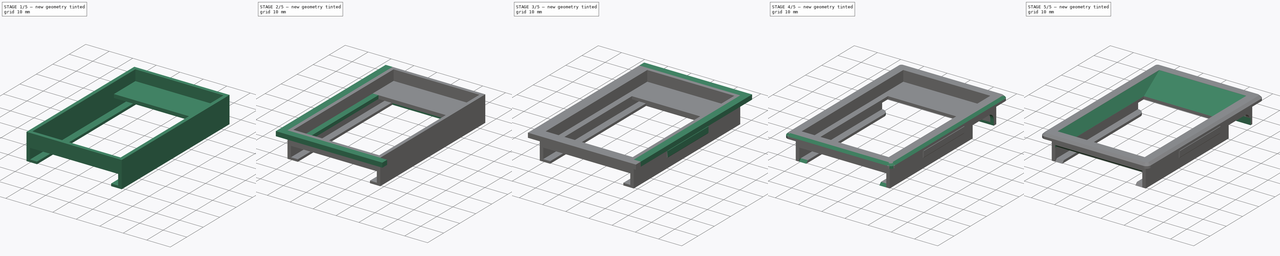
[diagram: build sequence overview — one tinted view per stage of 5, left to right]
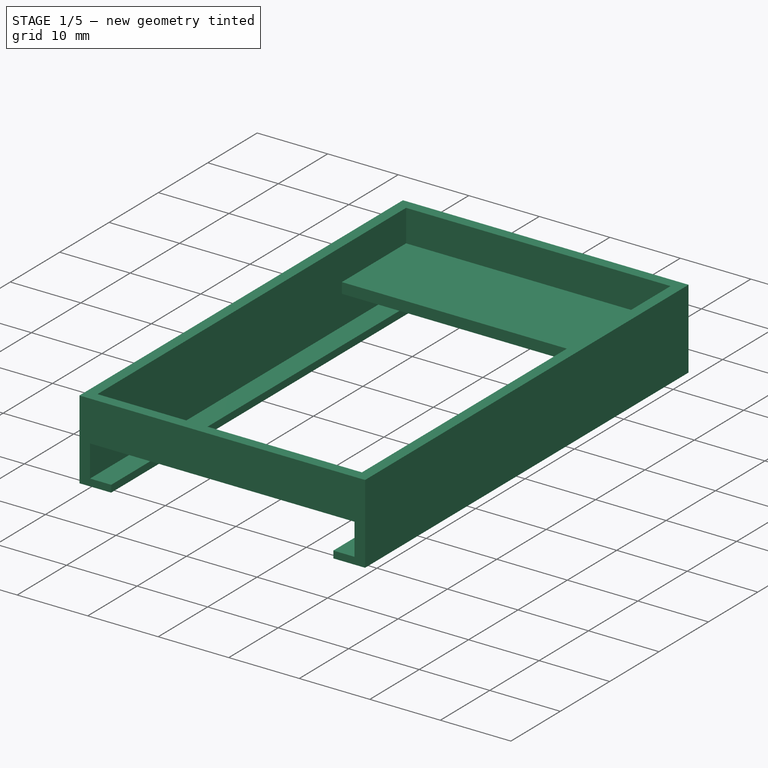
[diagram: stage 1 of 5 — iso view after this stage's code; geometry added in this stage tinted green]
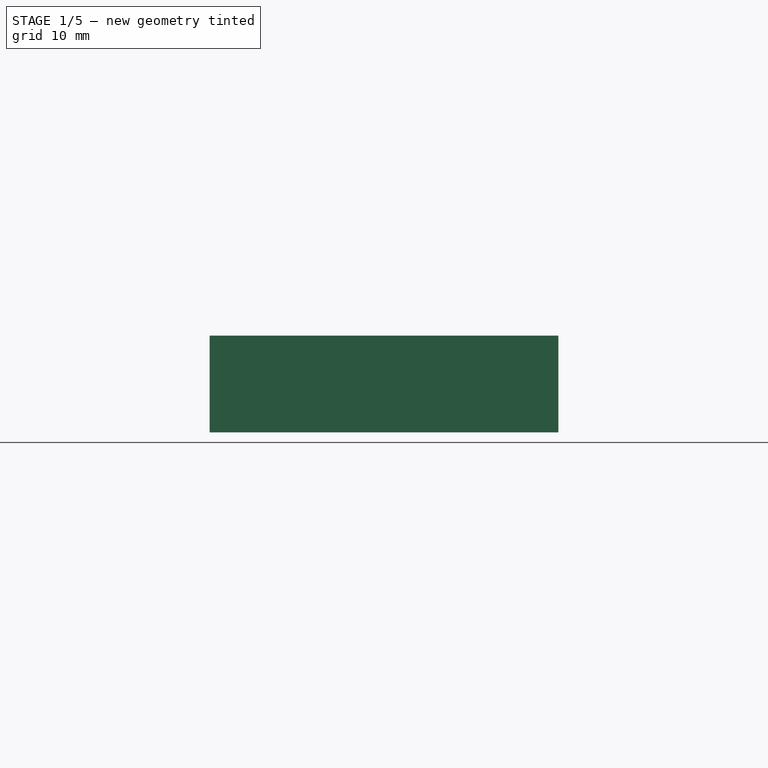
[diagram: stage 1 of 5 — front view after this stage's code; geometry added in this stage tinted green]
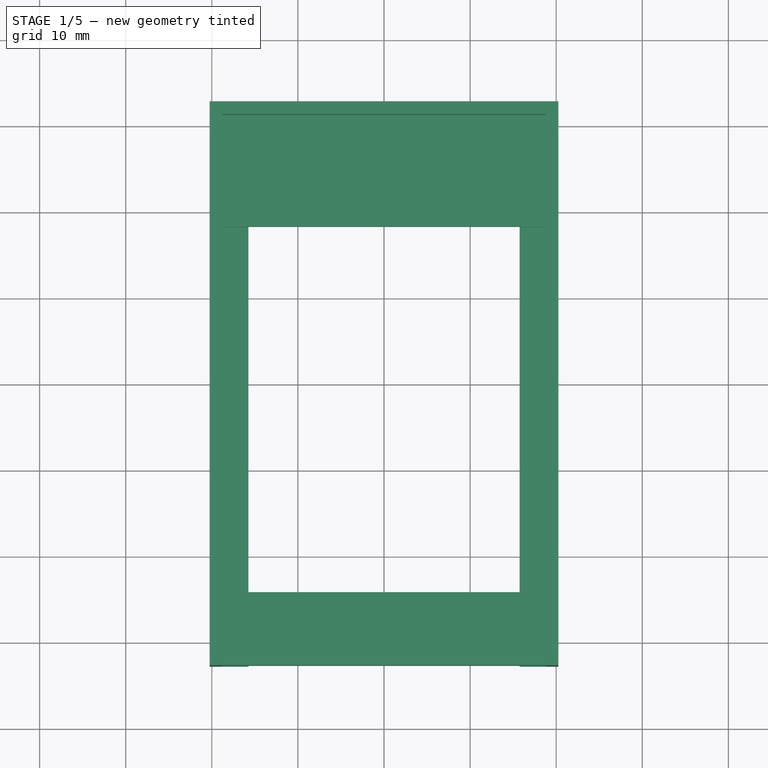
[diagram: stage 1 of 5 — top view after this stage's code; geometry added in this stage tinted green]
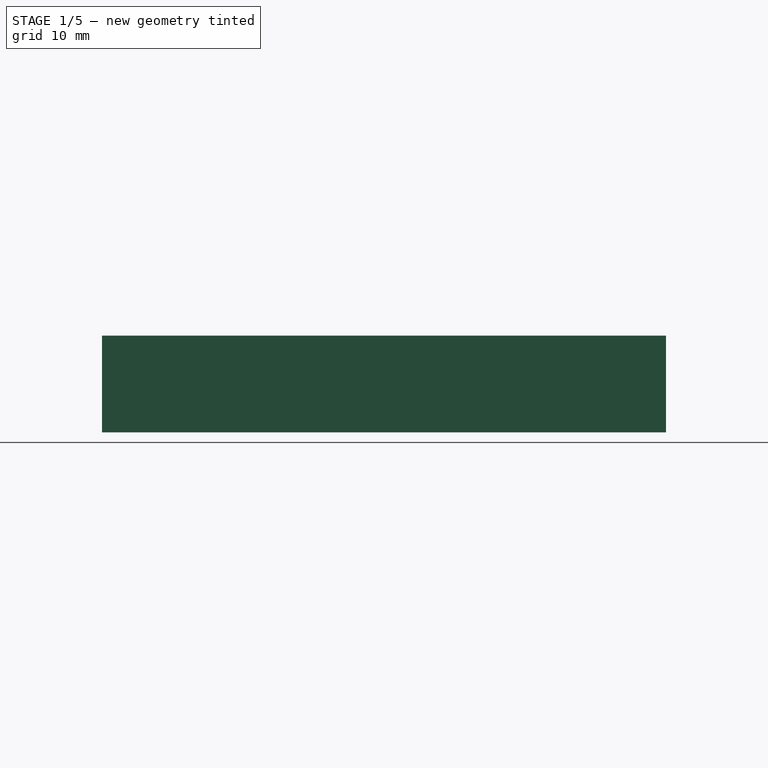
[diagram: stage 1 of 5 — right view after this stage's code; geometry added in this stage tinted green]
FCSTD DOCUMENT  (FreeCAD 0.21R33694 (Git))
Label: display_holder
License: All rights reserved
LicenseURL: http://en.wikipedia.org/wiki/All_rights_reserved
objects: Sketcher::SketchObject×19, PartDesign::Pad×15, PartDesign::Chamfer×9, PartDesign::Pocket×4, PartDesign::Fillet×4, PartDesign::Body×1
note: 84 computed .brp shape members not serialized (recipe doc carries the construction recipe); baked Part::Feature solids carry a one-line shape summary decoded from their .brp

FEATURE [Sketcher::SketchObject] Sketch
  FullyConstrained = true
  MapMode = 5
  Support = -> [XY_Plane]
  sketch-geometry (8):
    g0: LineSegment StartX=-18.75 StartY=31.25 StartZ=0 EndX=18.75 EndY=31.25 EndZ=0
    g1: LineSegment StartX=18.75 StartY=31.25 StartZ=0 EndX=18.75 EndY=-31.25 EndZ=0
    g2: LineSegment StartX=18.75 StartY=-31.25 StartZ=0 EndX=-18.75 EndY=-31.25 EndZ=0
    g3: LineSegment StartX=-18.75 StartY=-31.25 StartZ=0 EndX=-18.75 EndY=31.25 EndZ=0
    g4: LineSegment StartX=-20.25 StartY=32.75 StartZ=0 EndX=20.25 EndY=32.75 EndZ=0
    g5: LineSegment StartX=20.25 StartY=32.75 StartZ=0 EndX=20.25 EndY=-32.75 EndZ=0
    g6: LineSegment StartX=20.25 StartY=-32.75 StartZ=0 EndX=-20.25 EndY=-32.75 EndZ=0
    g7: LineSegment StartX=-20.25 StartY=-32.75 StartZ=0 EndX=-20.25 EndY=32.75 EndZ=0
  constraints (24):
    c: Coincident(g0,g1)
    c: Coincident(g1,g2)
    c: Coincident(g2,g3)
    c: Coincident(g3,g0)
    c: Horizontal(g0)
    c: Horizontal(g2)
    c: Vertical(g1)
    c: Vertical(g3)
    c: Coincident(g4,g5)
    c: Coincident(g5,g6)
    c: Coincident(g6,g7)
    c: Coincident(g7,g4)
    c: Horizontal(g4)
    c: Horizontal(g6)
    c: Vertical(g5)
    c: Vertical(g7)
    c: DistanceX(g0,g0) = 37.5
    c: DistanceX(g0,g-1) = 18.75
    c: DistanceY(g1,g1) = 62.5
    c: DistanceY(g-1,g0) = 31.25
    c: DistanceY(g0,g4) = 1.5
    c: DistanceX(g4,g0) = 1.5
    c: DistanceX(g1,g5) = 1.5
    c: DistanceY(g5,g1) = 1.5
FEATURE [PartDesign::Pad] Pad
  Direction = (0,0,1)
  Length = 11.25
  Length2 = 10
  Profile = -> Sketch
  ReferenceAxis = -> Sketch [N_Axis]
  Type = 0
FEATURE [Sketcher::SketchObject] Sketch001
  ExternalGeometry = -> [Pad]
  FullyConstrained = true
  MapMode = 5
  Placement = pos=(0,-32.75,0) rot=(1,0,0;1.5708rad)
  Support = -> [Pad]
  sketch-geometry (4):
    g0: LineSegment StartX=-18.75 StartY=5.5 StartZ=0 EndX=18.75 EndY=5.5 EndZ=0
    g1: LineSegment StartX=18.75 StartY=5.5 StartZ=0 EndX=18.75 EndY=0 EndZ=0
    g2: LineSegment StartX=18.75 StartY=0 StartZ=0 EndX=-18.75 EndY=0 EndZ=0
    g3: LineSegment StartX=-18.75 StartY=0 StartZ=0 EndX=-18.75 EndY=5.5 EndZ=0
  constraints (12):
    c: Coincident(g0,g1)
    c: Coincident(g1,g2)
    c: Coincident(g2,g3)
    c: Coincident(g3,g0)
    c: Horizontal(g0)
    c: Horizontal(g2)
    c: Vertical(g1)
    c: Vertical(g3)
    c: Horizontal(g1,g-5)
    c: Vertical(g0,g-3)
    c: Vertical(g-4,g0)
    c: DistanceY(g1,g1) = 5.5
FEATURE [PartDesign::Pocket] Pocket
  BaseFeature = -> Pad
  Direction = (0,1,-2e-16)
  Length = 5
  Length2 = 5
  Profile = -> Sketch001
  ReferenceAxis = -> Sketch001 [N_Axis]
  Type = 0
FEATURE [Sketcher::SketchObject] Sketch002
  ExternalGeometry = -> [Pocket]
  FullyConstrained = true
  MapMode = 5
  Placement = pos=(18.75,0,0) rot=(0.57735,-0.57735,-0.57735;2.0944rad)
  Support = -> [Pocket]
  sketch-geometry (4):
    g0: LineSegment StartX=-31.25 StartY=1 StartZ=0 EndX=32.75 EndY=1 EndZ=0
    g1: LineSegment StartX=32.75 StartY=1 StartZ=0 EndX=32.75 EndY=0 EndZ=0
    g2: LineSegment StartX=32.75 StartY=0 StartZ=0 EndX=-31.25 EndY=0 EndZ=0
    g3: LineSegment StartX=-31.25 StartY=0 StartZ=0 EndX=-31.25 EndY=1 EndZ=0
  constraints (11):
    c: Coincident(g0,g1)
    c: Coincident(g1,g2)
    c: Coincident(g2,g3)
    c: Coincident(g3,g0)
    c: Horizontal(g0)
    c: Horizontal(g2)
    c: Vertical(g1)
    c: Vertical(g3)
    c: Coincident(g1,g-3)
    c: DistanceY(g1,g1) = 1
    c: DistanceX(g-4,g2) = 0
FEATURE [PartDesign::Pad] Pad001
  BaseFeature = -> Pocket
  Direction = (-1,0,0)
  Length = 3
  Length2 = 10
  Profile = -> Sketch002
  ReferenceAxis = -> Sketch002 [N_Axis]
  Type = 0
FEATURE [Sketcher::SketchObject] Sketch003
  ExternalGeometry = -> [Pad001]
  FullyConstrained = true
  MapMode = 5
  Placement = pos=(-18.75,0,0) rot=(0.57735,0.57735,0.57735;2.0944rad)
  Support = -> [Pad001]
  sketch-geometry (4):
    g0: LineSegment StartX=-32.75 StartY=0 StartZ=0 EndX=31.25 EndY=0 EndZ=0
    g1: LineSegment StartX=31.25 StartY=0 StartZ=0 EndX=31.25 EndY=1 EndZ=0
    g2: LineSegment StartX=31.25 StartY=1 StartZ=0 EndX=-32.75 EndY=1 EndZ=0
    g3: LineSegment StartX=-32.75 StartY=1 StartZ=0 EndX=-32.75 EndY=0 EndZ=0
  constraints (12):
    c: Coincident(g0,g1)
    c: Coincident(g1,g2)
    c: Coincident(g2,g3)
    c: Coincident(g3,g0)
    c: Horizontal(g0)
    c: Horizontal(g2)
    c: Vertical(g1)
    c: Vertical(g3)
    c: PointOnObject(g0,g-1)
    c: DistanceX(g-3,g0) = 0
    c: DistanceX(g0,g-4) = 0
    c: DistanceY(g3,g3) = 1
FEATURE [PartDesign::Pad] Pad002
  BaseFeature = -> Pad001
  Direction = (1,0,0)
  Length = 3
  Length2 = 10
  Profile = -> Sketch003
  ReferenceAxis = -> Sketch003 [N_Axis]
  Type = 0
FEATURE [Sketcher::SketchObject] Sketch004
  ExternalGeometry = -> [Pad002]
  FullyConstrained = true
  MapMode = 5
  Placement = pos=(0,31.25,0) rot=(1,0,0;1.5708rad)
  Support = -> [Pad002]
  sketch-geometry (4):
    g0: LineSegment StartX=-18.75 StartY=6.7 StartZ=0 EndX=18.75 EndY=6.7 EndZ=0
    g1: LineSegment StartX=18.75 StartY=6.7 StartZ=0 EndX=18.75 EndY=5.2 EndZ=0
    g2: LineSegment StartX=18.75 StartY=5.2 StartZ=0 EndX=-18.75 EndY=5.2 EndZ=0
    g3: LineSegment StartX=-18.75 StartY=5.2 StartZ=0 EndX=-18.75 EndY=6.7 EndZ=0
  constraints (12):
    c: Coincident(g0,g1)
    c: Coincident(g1,g2)
    c: Coincident(g2,g3)
    c: Coincident(g3,g0)
    c: Horizontal(g0)
    c: Horizontal(g2)
    c: Vertical(g1)
    c: Vertical(g3)
    c: Vertical(g0,g-3)
    c: DistanceY(g1,g1) = 1.5
    c: Vertical(g0,g-4)
    c: DistanceY(g-3,g2) = 4.2
FEATURE [PartDesign::Pad] Pad003
  BaseFeature = -> Pad002
  Direction = (0,-1,2e-16)
  Length = 13
  Length2 = 10
  Profile = -> Sketch004
  ReferenceAxis = -> Sketch004 [N_Axis]
  Type = 0
FEATURE [Sketcher::SketchObject] Sketch005
  ExternalGeometry = -> [Pad003]
  FullyConstrained = true
  MapMode = 5
  Placement = pos=(0,-31.25,0) rot=(0,0.707107,0.707107;3.14159rad)
  Support = -> [Pad003]
  sketch-geometry (4):
    g0: LineSegment StartX=-18.75 StartY=6.7 StartZ=0 EndX=18.75 EndY=6.7 EndZ=0
    g1: LineSegment StartX=18.75 StartY=6.7 StartZ=0 EndX=18.75 EndY=5.2 EndZ=0
    g2: LineSegment StartX=18.75 StartY=5.2 StartZ=0 EndX=-18.75 EndY=5.2 EndZ=0
    g3: LineSegment StartX=-18.75 StartY=5.2 StartZ=0 EndX=-18.75 EndY=6.7 EndZ=0
  constraints (12):
    c: Coincident(g0,g1)
    c: Coincident(g1,g2)
    c: Coincident(g2,g3)
    c: Coincident(g3,g0)
    c: Horizontal(g0)
    c: Horizontal(g2)
    c: Vertical(g1)
    c: Vertical(g3)
    c: DistanceY(g1,g1) = 1.5
    c: DistanceY(g-5,g1) = 4.2
    c: DistanceX(g1,g-5) = 0
    c: DistanceX(g-3,g2) = 0
FEATURE [PartDesign::Pad] Pad004
  BaseFeature = -> Pad003
  Direction = (0,1,-2e-16)
  Length = 7.05
  Length2 = 10
  Profile = -> Sketch005
  ReferenceAxis = -> Sketch005 [N_Axis]
  Type = 0
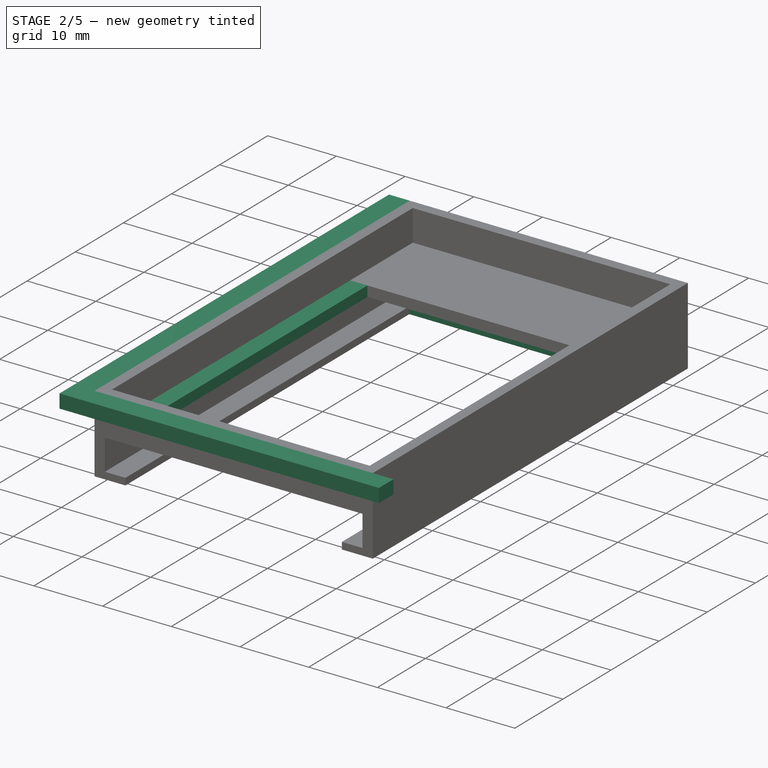
[diagram: stage 2 of 5 — iso view after this stage's code; geometry added in this stage tinted green]
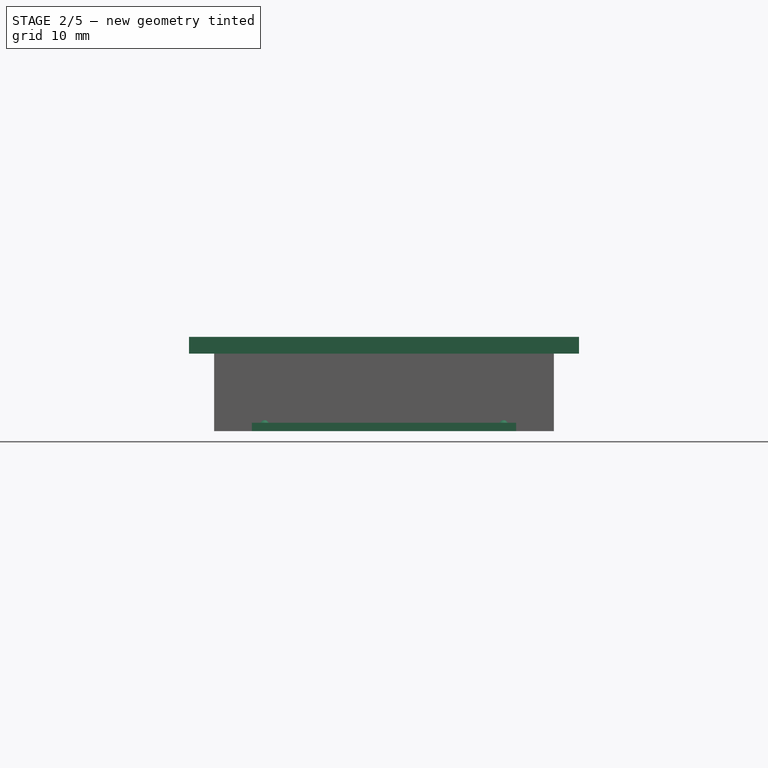
[diagram: stage 2 of 5 — front view after this stage's code; geometry added in this stage tinted green]
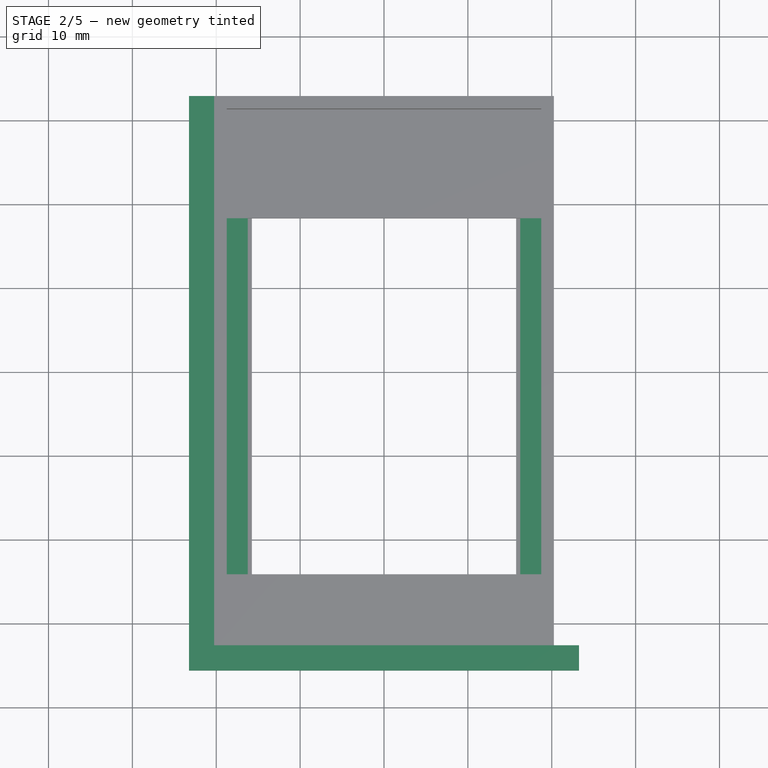
[diagram: stage 2 of 5 — top view after this stage's code; geometry added in this stage tinted green]
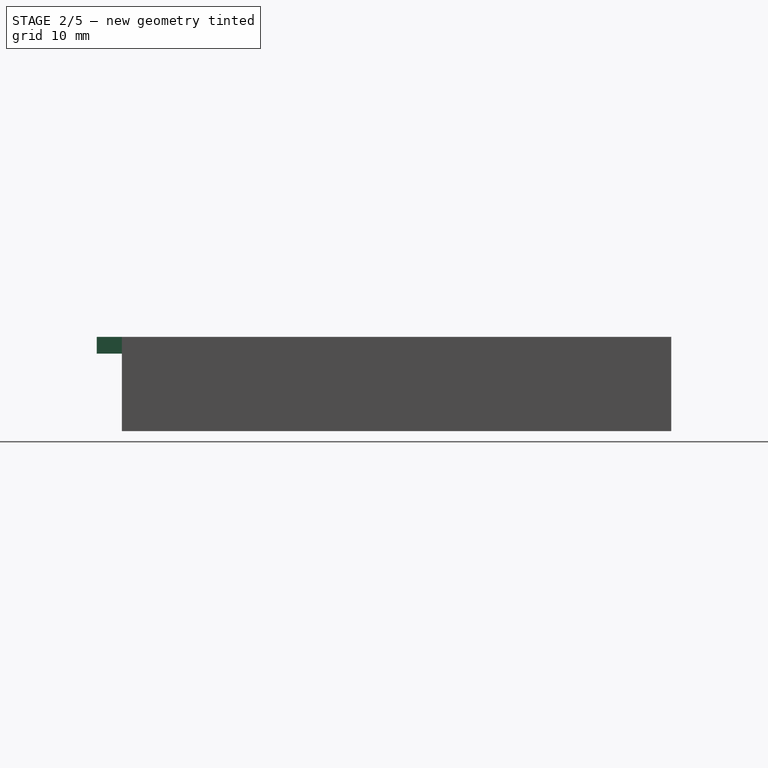
[diagram: stage 2 of 5 — right view after this stage's code; geometry added in this stage tinted green]
FEATURE [Sketcher::SketchObject] Sketch006
  ExternalGeometry = -> [Pad004]
  FullyConstrained = true
  MapMode = 5
  Placement = pos=(-18.75,0,0) rot=(0.57735,0.57735,0.57735;2.0944rad)
  Support = -> [Pad004]
  sketch-geometry (4):
    g0: LineSegment StartX=-24.2 StartY=6.7 StartZ=0 EndX=18.25 EndY=6.7 EndZ=0
    g1: LineSegment StartX=18.25 StartY=6.7 StartZ=0 EndX=18.25 EndY=5.2 EndZ=0
    g2: LineSegment StartX=18.25 StartY=5.2 StartZ=0 EndX=-24.2 EndY=5.2 EndZ=0
    g3: LineSegment StartX=-24.2 StartY=5.2 StartZ=0 EndX=-24.2 EndY=6.7 EndZ=0
  constraints (11):
    c: Coincident(g0,g1)
    c: Coincident(g1,g2)
    c: Coincident(g2,g3)
    c: Coincident(g3,g0)
    c: Horizontal(g0)
    c: Horizontal(g2)
    c: Vertical(g1)
    c: Vertical(g3)
    c: DistanceY(g3,g3) = 1.5
    c: Coincident(g0,g-4)
    c: DistanceX(g0,g-3) = 0
FEATURE [PartDesign::Pad] Pad005
  BaseFeature = -> Pad004
  Direction = (1,0,0)
  Length = 2.5
  Length2 = 10
  Profile = -> Sketch006
  ReferenceAxis = -> Sketch006 [N_Axis]
  Type = 0
FEATURE [Sketcher::SketchObject] Sketch007
  ExternalGeometry = -> [Pad005]
  FullyConstrained = true
  MapMode = 5
  Placement = pos=(18.75,0,0) rot=(0.57735,-0.57735,-0.57735;2.0944rad)
  Support = -> [Pad005]
  sketch-geometry (4):
    g0: LineSegment StartX=-18.25 StartY=6.7 StartZ=0 EndX=24.2 EndY=6.7 EndZ=0
    g1: LineSegment StartX=24.2 StartY=6.7 StartZ=0 EndX=24.2 EndY=5.2 EndZ=0
    g2: LineSegment StartX=24.2 StartY=5.2 StartZ=0 EndX=-18.25 EndY=5.2 EndZ=0
    g3: LineSegment StartX=-18.25 StartY=5.2 StartZ=0 EndX=-18.25 EndY=6.7 EndZ=0
  constraints (11):
    c: Coincident(g0,g1)
    c: Coincident(g1,g2)
    c: Coincident(g2,g3)
    c: Coincident(g3,g0)
    c: Horizontal(g0)
    c: Horizontal(g2)
    c: Vertical(g1)
    c: Vertical(g3)
    c: DistanceY(g3,g3) = 1.5
    c: Coincident(g-4,g0)
    c: DistanceX(g-3,g0) = 0
FEATURE [PartDesign::Pad] Pad006
  BaseFeature = -> Pad005
  Direction = (-1,0,0)
  Length = 2.5
  Length2 = 10
  Profile = -> Sketch007
  ReferenceAxis = -> Sketch007 [N_Axis]
  Type = 0
FEATURE [Sketcher::SketchObject] Sketch008
  FullyConstrained = false
  MapMode = 5
  Placement = pos=(0,31.25,0) rot=(1,0,0;1.5708rad)
  sketch-geometry (4):
    g0: LineSegment StartX=-15.75 StartY=0 StartZ=0 EndX=15.75 EndY=0 EndZ=0
    g1: LineSegment StartX=15.75 StartY=0 StartZ=0 EndX=15.75 EndY=1 EndZ=0
    g2: LineSegment StartX=15.75 StartY=1 StartZ=0 EndX=-15.75 EndY=1 EndZ=0
    g3: LineSegment StartX=-15.75 StartY=1 StartZ=0 EndX=-15.75 EndY=0 EndZ=0
  constraints (9):
    c: Coincident(g0,g1)
    c: Coincident(g1,g2)
    c: Coincident(g2,g3)
    c: Coincident(g3,g0)
    c: Horizontal(g0)
    c: Horizontal(g2)
    c: Vertical(g1)
    c: Vertical(g3)
    c: DistanceY(g3,g3) = 1
FEATURE [Sketcher::SketchObject] Sketch009
  FullyConstrained = false
  MapMode = 5
  Placement = pos=(0,2e-16,1) rot=(0,0,1;0rad)
  sketch-geometry (2):
    g0: Circle CenterX=14.25 CenterY=29 CenterZ=0 NormalX=0 NormalY=0 NormalZ=1 AngleXU=0 Radius=0.497315
    g1: Circle CenterX=-14.25 CenterY=29 CenterZ=0 NormalX=0 NormalY=0 NormalZ=1 AngleXU=0 Radius=0.497315
  constraints (2):
    c: Horizontal(g1,g0)
    c: Equal(g0,g1)
FEATURE [Sketcher::SketchObject] Sketch011
  FullyConstrained = false
  MapMode = 5
  Placement = pos=(-20.25,0,0) rot=(0.57735,-0.57735,-0.57735;2.0944rad)
  sketch-geometry (4):
    g0: LineSegment StartX=-32.75 StartY=11.25 StartZ=0 EndX=32.75 EndY=11.25 EndZ=0
    g1: LineSegment StartX=32.75 StartY=11.25 StartZ=0 EndX=32.75 EndY=9.25 EndZ=0
    g2: LineSegment StartX=32.75 StartY=9.25 StartZ=0 EndX=-32.75 EndY=9.25 EndZ=0
    g3: LineSegment StartX=-32.75 StartY=9.25 StartZ=0 EndX=-32.75 EndY=11.25 EndZ=0
  constraints (9):
    c: Coincident(g0,g1)
    c: Coincident(g1,g2)
    c: Coincident(g2,g3)
    c: Coincident(g3,g0)
    c: Horizontal(g0)
    c: Horizontal(g2)
    c: Vertical(g1)
    c: Vertical(g3)
    c: DistanceY(g1,g1) = 2
FEATURE [Sketcher::SketchObject] Sketch012
  FullyConstrained = false
  MapMode = 5
  Placement = pos=(0,-32.75,0) rot=(1,0,0;1.5708rad)
  sketch-geometry (4):
    g0: LineSegment StartX=-23.25 StartY=11.25 StartZ=0 EndX=23.25 EndY=11.25 EndZ=0
    g1: LineSegment StartX=23.25 StartY=11.25 StartZ=0 EndX=23.25 EndY=9.25 EndZ=0
    g2: LineSegment StartX=23.25 StartY=9.25 StartZ=0 EndX=-23.25 EndY=9.25 EndZ=0
    g3: LineSegment StartX=-23.25 StartY=9.25 StartZ=0 EndX=-23.25 EndY=11.25 EndZ=0
  constraints (8):
    c: Coincident(g0,g1)
    c: Coincident(g1,g2)
    c: Coincident(g2,g3)
    c: Coincident(g3,g0)
    c: Horizontal(g0)
    c: Horizontal(g2)
    c: Vertical(g1)
    c: Vertical(g3)
FEATURE [Sketcher::SketchObject] Sketch013
  FullyConstrained = false
  MapMode = 5
  Placement = pos=(-20.25,0,0) rot=(0.57735,-0.57735,-0.57735;2.0944rad)
  sketch-geometry (4):
    g0: LineSegment StartX=-12.5 StartY=7.85813 StartZ=0 EndX=12.5 EndY=7.85813 EndZ=0
    g1: LineSegment StartX=12.5 StartY=7.85813 StartZ=0 EndX=12.5 EndY=4.60813 EndZ=0
    g2: LineSegment StartX=12.5 StartY=4.60813 StartZ=0 EndX=-12.5 EndY=4.60813 EndZ=0
    g3: LineSegment StartX=-12.5 StartY=4.60813 StartZ=0 EndX=-12.5 EndY=7.85813 EndZ=0
  constraints (11):
    c: Coincident(g0,g1)
    c: Coincident(g1,g2)
    c: Coincident(g2,g3)
    c: Coincident(g3,g0)
    c: Horizontal(g0)
    c: Horizontal(g2)
    c: Vertical(g1)
    c: Vertical(g3)
    c: DistanceX(g0,g0) = 25
    c: DistanceX(g0,g-1) = 12.5
    c: DistanceY(g1,g1) = 3.25
FEATURE [Sketcher::SketchObject] Sketch014
  FullyConstrained = false
  MapMode = 5
  Placement = pos=(20.25,0,0) rot=(0.57735,0.57735,0.57735;2.0944rad)
  sketch-geometry (4):
    g0: LineSegment StartX=-12.5 StartY=7.39187 StartZ=0 EndX=12.5 EndY=7.39187 EndZ=0
    g1: LineSegment StartX=12.5 StartY=7.39187 StartZ=0 EndX=12.5 EndY=4.14187 EndZ=0
    g2: LineSegment StartX=12.5 StartY=4.14187 StartZ=0 EndX=-12.5 EndY=4.14187 EndZ=0
    g3: LineSegment StartX=-12.5 StartY=4.14187 StartZ=0 EndX=-12.5 EndY=7.39187 EndZ=0
  constraints (11):
    c: Coincident(g0,g1)
    c: Coincident(g1,g2)
    c: Coincident(g2,g3)
    c: Coincident(g3,g0)
    c: Horizontal(g0)
    c: Horizontal(g2)
    c: Vertical(g1)
    c: Vertical(g3)
    c: DistanceX(g0,g0) = 25
    c: DistanceX(g0,g-1) = 12.5
    c: DistanceY(g1,g1) = 3.25
FEATURE [Sketcher::SketchObject] Sketch015
  FullyConstrained = false
  MapMode = 5
  Placement = pos=(0,32.75,0) rot=(0,0.707107,0.707107;3.14159rad)
  sketch-geometry (4):
    g0: LineSegment StartX=-23.25 StartY=11.25 StartZ=0 EndX=23.25 EndY=11.25 EndZ=0
    g1: LineSegment StartX=23.25 StartY=11.25 StartZ=0 EndX=23.25 EndY=9.25 EndZ=0
    g2: LineSegment StartX=23.25 StartY=9.25 StartZ=0 EndX=-23.25 EndY=9.25 EndZ=0
    g3: LineSegment StartX=-23.25 StartY=9.25 StartZ=0 EndX=-23.25 EndY=11.25 EndZ=0
  constraints (8):
    c: Coincident(g0,g1)
    c: Coincident(g1,g2)
    c: Coincident(g2,g3)
    c: Coincident(g3,g0)
    c: Horizontal(g0)
    c: Horizontal(g2)
    c: Vertical(g1)
    c: Vertical(g3)
FEATURE [Sketcher::SketchObject] Sketch017
  FullyConstrained = false
  MapMode = 5
  Placement = pos=(0,-32.75,0) rot=(1,0,0;1.5708rad)
  sketch-geometry (4):
    g0: LineSegment StartX=-18.75 StartY=5.5 StartZ=0 EndX=18.75 EndY=5.5 EndZ=0
    g1: LineSegment StartX=18.75 StartY=5.5 StartZ=0 EndX=18.75 EndY=5.2 EndZ=0
    g2: LineSegment StartX=18.75 StartY=5.2 StartZ=0 EndX=-18.75 EndY=5.2 EndZ=0
    g3: LineSegment StartX=-18.75 StartY=5.2 StartZ=0 EndX=-18.75 EndY=5.5 EndZ=0
  constraints (8):
    c: Coincident(g0,g1)
    c: Coincident(g1,g2)
    c: Coincident(g2,g3)
    c: Coincident(g3,g0)
    c: Horizontal(g0)
    c: Horizontal(g2)
    c: Vertical(g1)
    c: Vertical(g3)
FEATURE [PartDesign::Pad] Pad007
  BaseFeature = -> Pad006
  Direction = (0,-1,2e-16)
  Length = 5
  Length2 = 10
  Profile = -> Sketch008
  ReferenceAxis = -> Sketch008 [N_Axis]
  Type = 0
FEATURE [PartDesign::Pad] Pad008
  BaseFeature = -> Pad007
  Direction = (0,0,1)
  Length = 0.3
  Length2 = 10
  Profile = -> Sketch009
  ReferenceAxis = -> Sketch009 [N_Axis]
  Type = 0
FEATURE [PartDesign::Chamfer] Chamfer
  Angle = 45
  Base = -> Pad008 [Edge115,Edge113]
  BaseFeature = -> Pad008
  ChamferType = 0
  FlipDirection = false
  Size = 0.29
  Size2 = 1
  SupportTransform = false
  UseAllEdges = false
FEATURE [PartDesign::Pad] Pad009
  BaseFeature = -> Chamfer
  Direction = (-1,0,0)
  Length = 3
  Length2 = 10
  Profile = -> Sketch011
  ReferenceAxis = -> Sketch011 [N_Axis]
  Type = 0
FEATURE [PartDesign::Pad] Pad010
  BaseFeature = -> Pad009
  Direction = (0,-1,2e-16)
  Length = 3
  Length2 = 10
  Profile = -> Sketch012
  ReferenceAxis = -> Sketch012 [N_Axis]
  Type = 0
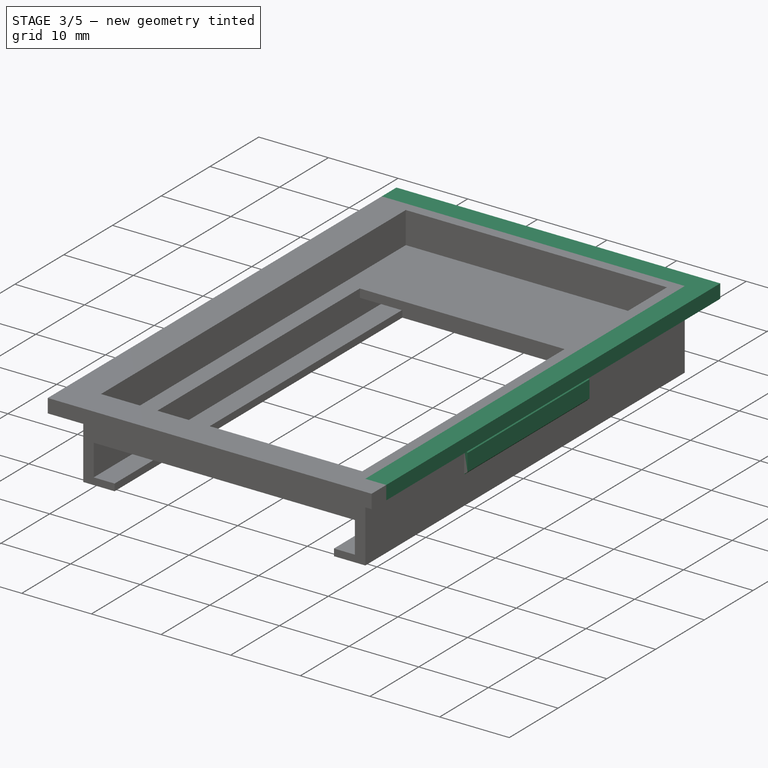
[diagram: stage 3 of 5 — iso view after this stage's code; geometry added in this stage tinted green]
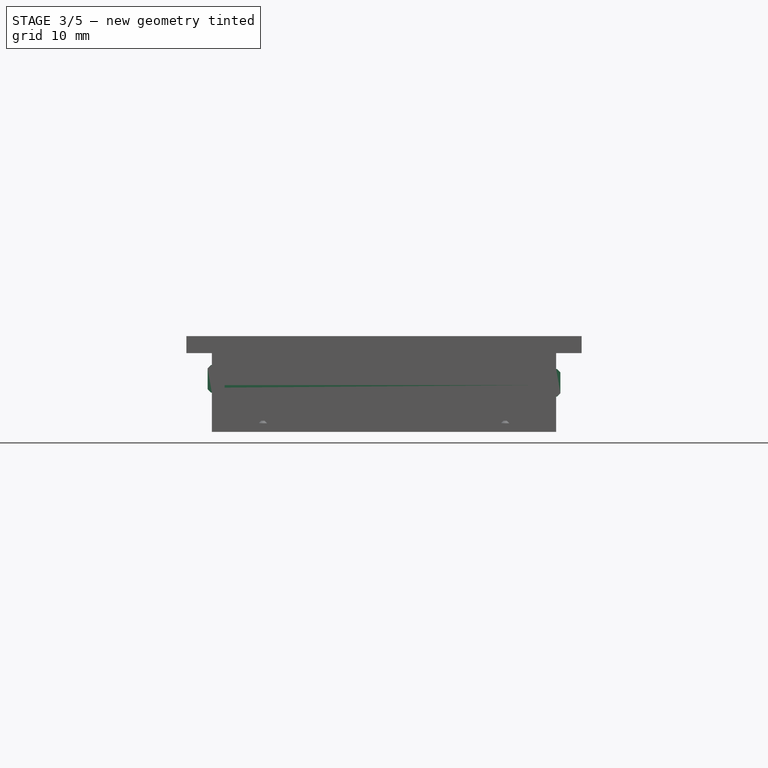
[diagram: stage 3 of 5 — front view after this stage's code; geometry added in this stage tinted green]
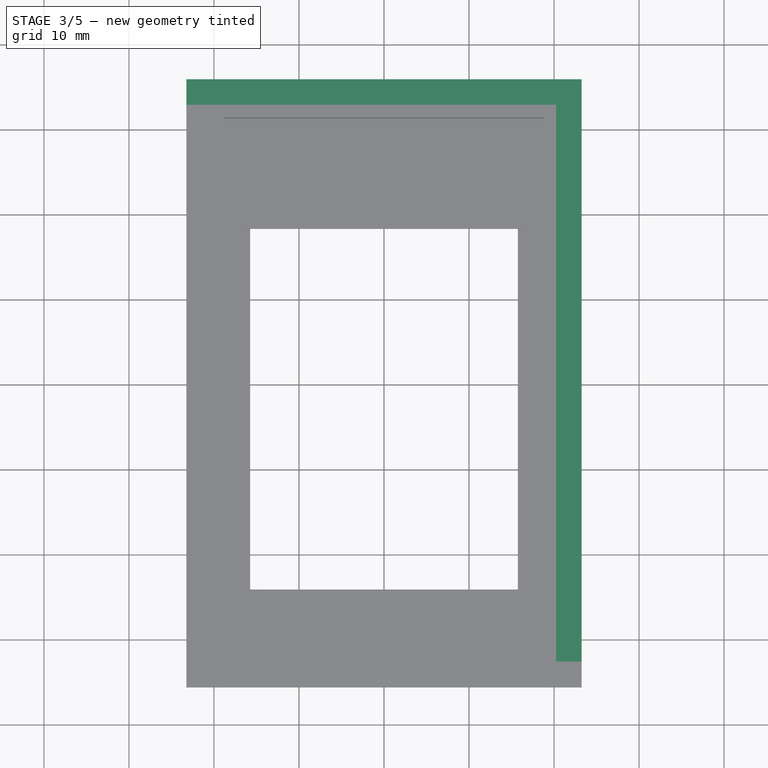
[diagram: stage 3 of 5 — top view after this stage's code; geometry added in this stage tinted green]
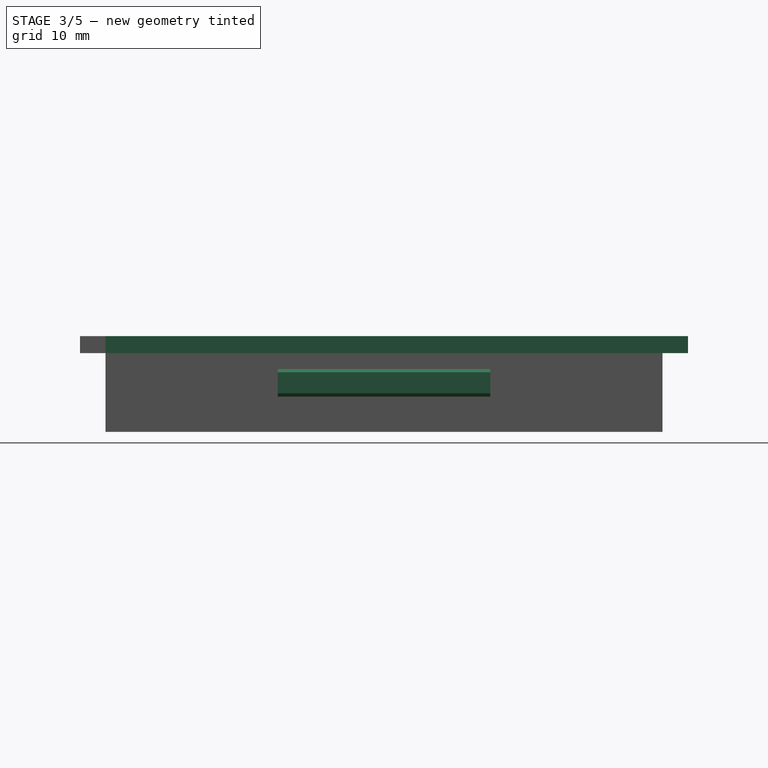
[diagram: stage 3 of 5 — right view after this stage's code; geometry added in this stage tinted green]
FEATURE [PartDesign::Pad] Pad011
  BaseFeature = -> Pad010
  Direction = (0,1,-2e-16)
  Length = 3
  Length2 = 10
  Profile = -> Sketch015
  ReferenceAxis = -> Sketch015 [N_Axis]
  Type = 0
FEATURE [Sketcher::SketchObject] Sketch019
  ExternalGeometry = -> [Pad011]
  FullyConstrained = true
  MapMode = 5
  Placement = pos=(20.25,0,0) rot=(0.57735,0.57735,0.57735;2.0944rad)
  Support = -> [Pad011]
  sketch-geometry (4):
    g0: LineSegment StartX=-32.75 StartY=11.25 StartZ=0 EndX=32.75 EndY=11.25 EndZ=0
    g1: LineSegment StartX=32.75 StartY=11.25 StartZ=0 EndX=32.75 EndY=9.25 EndZ=0
    g2: LineSegment StartX=32.75 StartY=9.25 StartZ=0 EndX=-32.75 EndY=9.25 EndZ=0
    g3: LineSegment StartX=-32.75 StartY=9.25 StartZ=0 EndX=-32.75 EndY=11.25 EndZ=0
  constraints (11):
    c: Coincident(g0,g1)
    c: Coincident(g1,g2)
    c: Coincident(g2,g3)
    c: Coincident(g3,g0)
    c: Horizontal(g0)
    c: Horizontal(g2)
    c: Vertical(g1)
    c: Vertical(g3)
    c: Coincident(g0,g-4)
    c: Horizontal(g-3,g2)
    c: Vertical(g0,g-5)
FEATURE [PartDesign::Pad] Pad012
  BaseFeature = -> Pad011
  Direction = (1,0,0)
  Length = 3
  Length2 = 10
  Profile = -> Sketch019
  ReferenceAxis = -> Sketch019 [N_Axis]
  Type = 0
FEATURE [PartDesign::Pocket] Pocket001
  BaseFeature = -> Pad012
  Direction = (0,1,-2e-16)
  Length = 64
  Length2 = 5
  Profile = -> Sketch017
  ReferenceAxis = -> Sketch017 [N_Axis]
  Type = 0
FEATURE [PartDesign::Pad] Pad013
  BaseFeature = -> Pocket001
  Direction = (-1,0,0)
  Length = 0.5
  Length2 = 10
  Profile = -> Sketch013
  ReferenceAxis = -> Sketch013 [N_Axis]
  Type = 0
FEATURE [PartDesign::Pad] Pad014
  BaseFeature = -> Pad013
  Direction = (1,0,0)
  Length = 0.5
  Length2 = 10
  Profile = -> Sketch014
  ReferenceAxis = -> Sketch014 [N_Axis]
  Type = 0
FEATURE [PartDesign::Chamfer] Chamfer001
  Angle = 45
  Base = -> Pad014 [Edge142,Edge145,Edge128,Edge125]
  BaseFeature = -> Pad014
  ChamferType = 0
  FlipDirection = false
  Size = 0.39
  Size2 = 1
  SupportTransform = false
  UseAllEdges = false
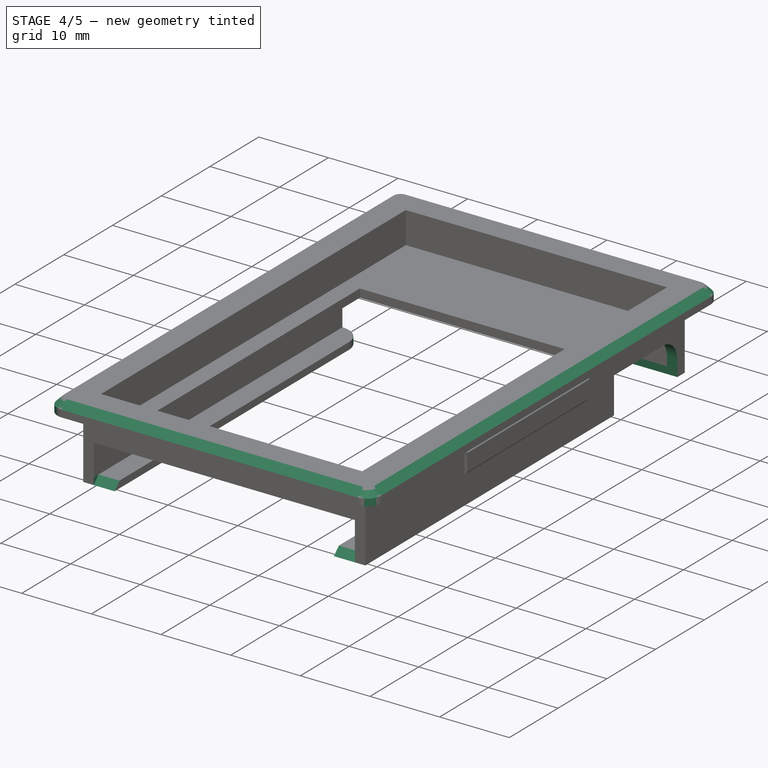
[diagram: stage 4 of 5 — iso view after this stage's code; geometry added in this stage tinted green]
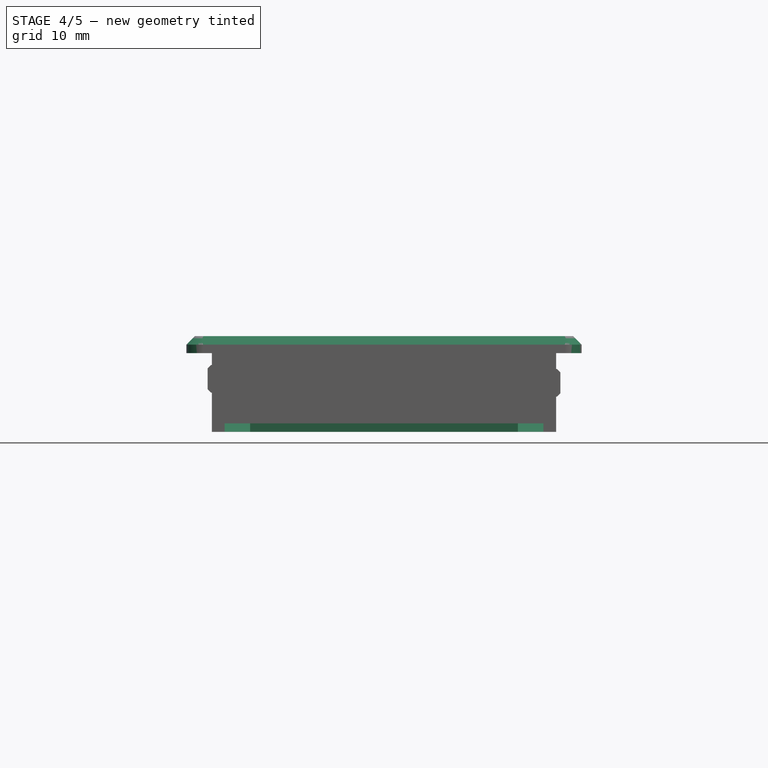
[diagram: stage 4 of 5 — front view after this stage's code; geometry added in this stage tinted green]
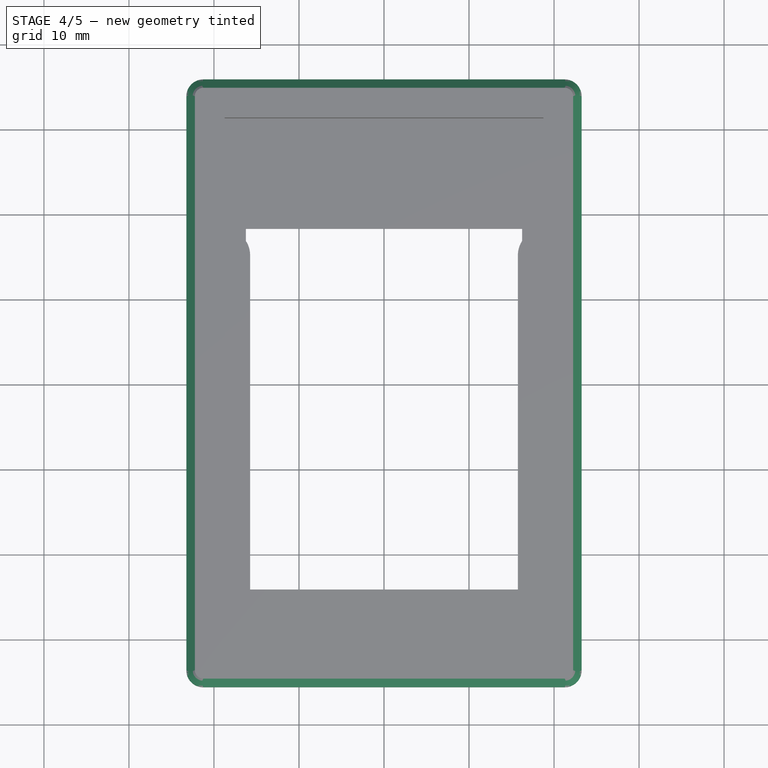
[diagram: stage 4 of 5 — top view after this stage's code; geometry added in this stage tinted green]
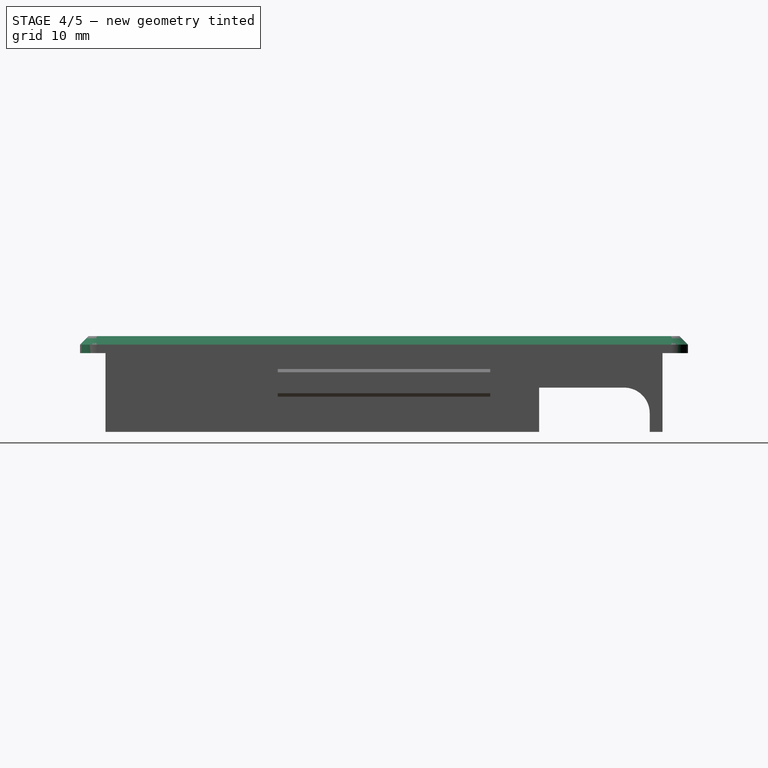
[diagram: stage 4 of 5 — right view after this stage's code; geometry added in this stage tinted green]
FEATURE [Sketcher::SketchObject] Sketch018
  ExternalGeometry = -> [Chamfer001]
  FullyConstrained = true
  MapMode = 5
  Placement = pos=(0,0,7e-15) rot=(1,0,0;3.14159rad)
  sketch-geometry (4):
    g0: LineSegment StartX=-20.25 StartY=-18.25 StartZ=0 EndX=20.25 EndY=-18.25 EndZ=0
    g1: LineSegment StartX=20.25 StartY=-18.25 StartZ=0 EndX=20.25 EndY=-31.25 EndZ=0
    g2: LineSegment StartX=20.25 StartY=-31.25 StartZ=0 EndX=-20.25 EndY=-31.25 EndZ=0
    g3: LineSegment StartX=-20.25 StartY=-31.25 StartZ=0 EndX=-20.25 EndY=-18.25 EndZ=0
  constraints (12):
    c: Coincident(g0,g1)
    c: Coincident(g1,g2)
    c: Coincident(g2,g3)
    c: Coincident(g3,g0)
    c: Horizontal(g0)
    c: Horizontal(g2)
    c: Vertical(g1)
    c: Vertical(g3)
    c: Horizontal(g0,g-3)
    c: Vertical(g-5,g0)
    c: Horizontal(g-6,g1)
    c: Vertical(g1,g-4)
FEATURE [PartDesign::Pocket] Pocket002
  BaseFeature = -> Chamfer001
  Direction = (0,0,1)
  Length = 5.2
  Length2 = 5
  Profile = -> Sketch018
  ReferenceAxis = -> Sketch018 [N_Axis]
  Type = 0
FEATURE [PartDesign::Fillet] Fillet
  Base = -> Pocket002 [Edge37]
  BaseFeature = -> Pocket002
  Radius = 3
  SupportTransform = false
  UseAllEdges = false
FEATURE [PartDesign::Fillet] Fillet001
  Base = -> Fillet [Edge30]
  BaseFeature = -> Fillet
  Radius = 3
  SupportTransform = false
  UseAllEdges = false
FEATURE [PartDesign::Fillet] Fillet002
  Base = -> Fillet001 [Edge57,Edge111]
  BaseFeature = -> Fillet001
  Radius = 2.99
  SupportTransform = false
  UseAllEdges = false
FEATURE [PartDesign::Chamfer] Chamfer002
  Angle = 45
  Base = -> Fillet002 [Edge10,Edge118]
  BaseFeature = -> Fillet002
  ChamferType = 0
  FlipDirection = false
  Size = 0.99
  Size2 = 1
  SupportTransform = false
  UseAllEdges = false
FEATURE [PartDesign::Fillet] Fillet003
  Base = -> Chamfer002 [Edge136,Edge133,Edge197,Edge199]
  BaseFeature = -> Chamfer002
  Radius = 2
  SupportTransform = false
  UseAllEdges = false
FEATURE [PartDesign::Chamfer] Chamfer003
  Angle = 45
  Base = -> Fillet003 [Edge116]
  BaseFeature = -> Fillet003
  ChamferType = 0
  FlipDirection = false
  Size = 1
  Size2 = 1
  SupportTransform = false
  UseAllEdges = false
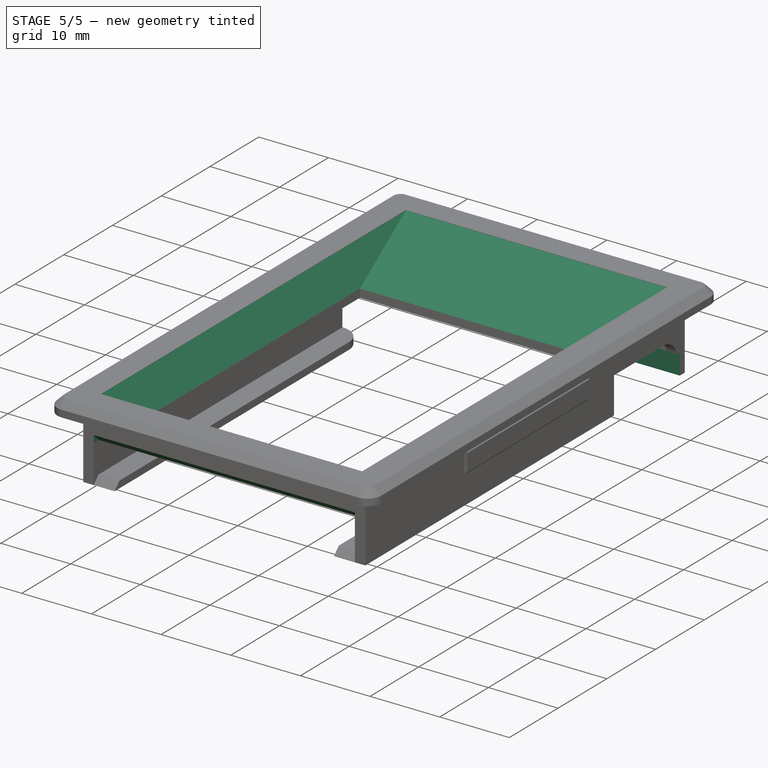
[diagram: stage 5 of 5 — iso view after this stage's code; geometry added in this stage tinted green]
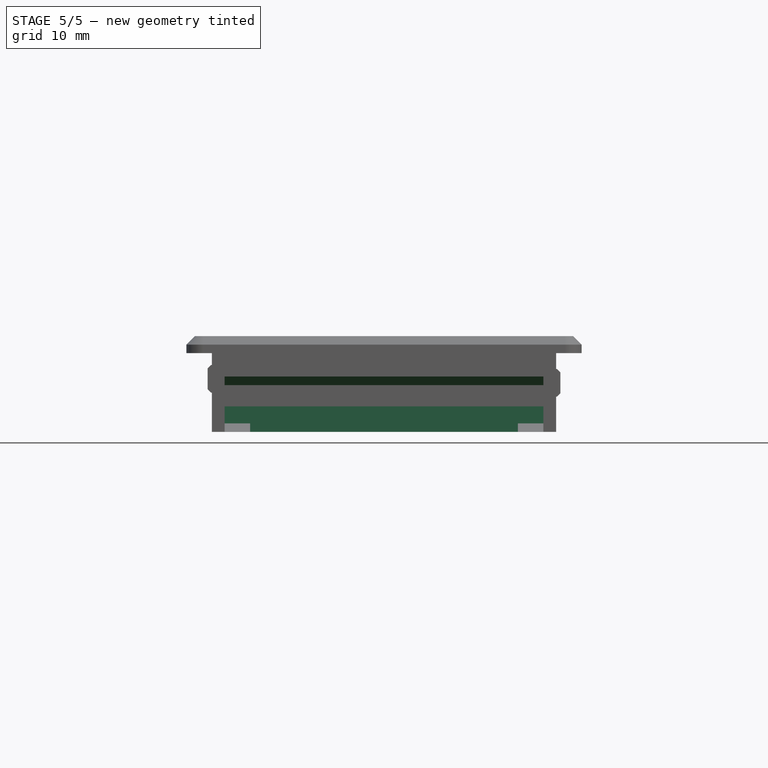
[diagram: stage 5 of 5 — front view after this stage's code; geometry added in this stage tinted green]
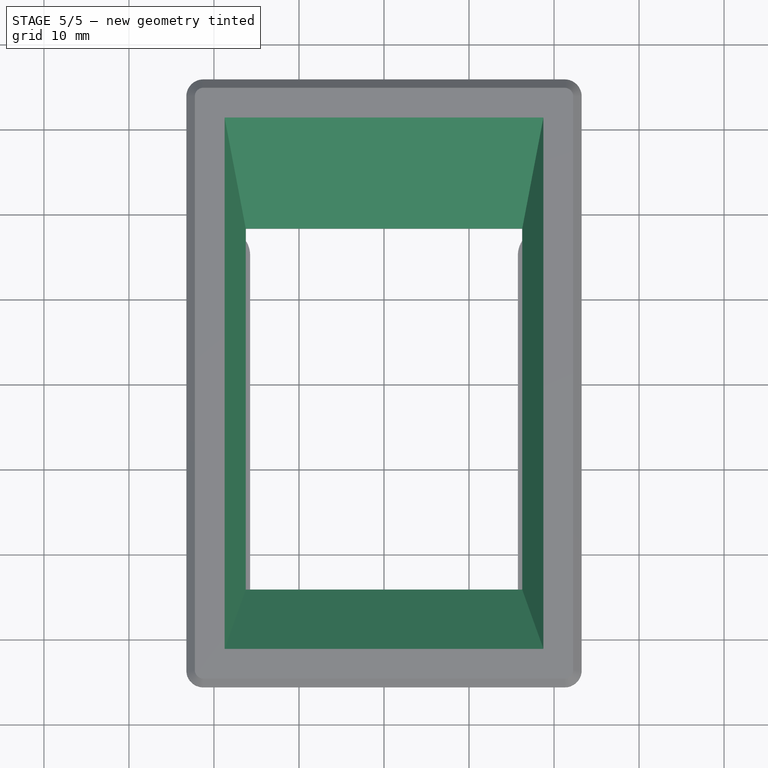
[diagram: stage 5 of 5 — top view after this stage's code; geometry added in this stage tinted green]
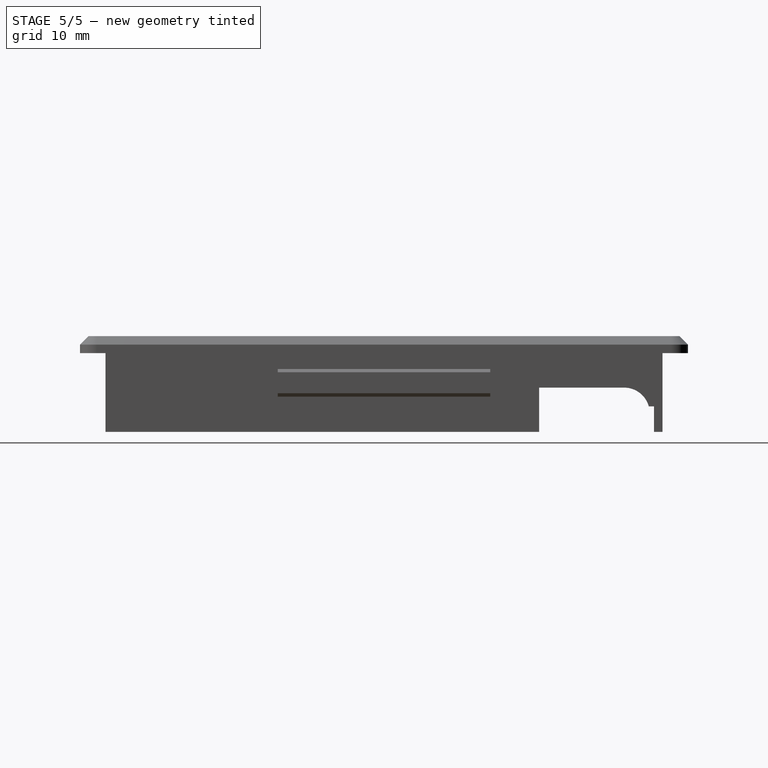
[diagram: stage 5 of 5 — right view after this stage's code; geometry added in this stage tinted green]
FEATURE [PartDesign::Chamfer] Chamfer004
  Angle = 45
  Base = -> Chamfer003 [Edge135]
  BaseFeature = -> Chamfer003
  ChamferType = 1
  FlipDirection = false
  Size = 4.5
  Size2 = 12.99
  SupportTransform = false
  UseAllEdges = false
FEATURE [PartDesign::Chamfer] Chamfer005
  Angle = 45
  Base = -> Chamfer004 [Edge26]
  BaseFeature = -> Chamfer004
  ChamferType = 1
  FlipDirection = false
  Size = 4.5
  Size2 = 7.04
  SupportTransform = false
  UseAllEdges = false
FEATURE [PartDesign::Chamfer] Chamfer006
  Angle = 45
  Base = -> Chamfer005 [Edge33]
  BaseFeature = -> Chamfer005
  ChamferType = 1
  FlipDirection = false
  Size = 4.5
  Size2 = 2.49
  SupportTransform = false
  UseAllEdges = false
FEATURE [PartDesign::Chamfer] Chamfer007
  Angle = 45
  Base = -> Chamfer006 [Edge15]
  BaseFeature = -> Chamfer006
  ChamferType = 1
  FlipDirection = false
  Size = 4.5
  Size2 = 2.49
  SupportTransform = false
  UseAllEdges = false
FEATURE [Sketcher::SketchObject] Sketch020
  ExternalGeometry = -> [Chamfer007]
  FullyConstrained = true
  MapMode = 5
  Placement = pos=(0,0,0) rot=(1,0,0;3.14159rad)
  Support = -> [Chamfer007]
  sketch-geometry (4):
    g0: LineSegment StartX=-20.25 StartY=-29.75 StartZ=0 EndX=20.25 EndY=-29.75 EndZ=0
    g1: LineSegment StartX=20.25 StartY=-29.75 StartZ=0 EndX=20.25 EndY=-31.75 EndZ=0
    g2: LineSegment StartX=20.25 StartY=-31.75 StartZ=0 EndX=-20.25 EndY=-31.75 EndZ=0
    g3: LineSegment StartX=-20.25 StartY=-31.75 StartZ=0 EndX=-20.25 EndY=-29.75 EndZ=0
  constraints (13):
    c: Coincident(g0,g1)
    c: Coincident(g1,g2)
    c: Coincident(g2,g3)
    c: Coincident(g3,g0)
    c: Horizontal(g0)
    c: Horizontal(g2)
    c: Vertical(g1)
    c: Vertical(g3)
    c: Coincident(g0,g-4)
    c: DistanceY(g3,g3) = 2
    c: Vertical(g0,g-3)
    c: DistanceY(g2,g-4) = 0.5
    c: Vertical(g2,g-4)
FEATURE [PartDesign::Pocket] Pocket003
  BaseFeature = -> Chamfer007
  Direction = (0,0,1)
  Length = 3
  Length2 = 5
  Profile = -> Sketch020
  ReferenceAxis = -> Sketch020 [N_Axis]
  Type = 0
FEATURE [PartDesign::Chamfer] Chamfer008
  Angle = 45
  Base = -> Pocket003 [Edge73]
  BaseFeature = -> Pocket003
  ChamferType = 0
  FlipDirection = false
  Size = 1
  Size2 = 1
  SupportTransform = false
  UseAllEdges = false
FEATURE [PartDesign::Body] Body
  Group = -> [Sketch,Pad,Sketch001,Pocket,Sketch002,Pad001,Sketch003,Pad002,Sketch004,Pad003,Sketch005,Pad004,Sketch006,Pad005,Sketch007,Pad006,Sketch008,Sketch009,Sketch011,Sketch012,Sketch013,Sketch014,Sketch015,Sketch017,Sketch018,Pad007,Pad008,Chamfer,Pad009,Pad010,Pad011,Sketch019,Pad012,Pocket001,Pad013,Pad014,Chamfer001,Pocket002,Fillet,Fillet001,Fillet002,Chamfer002,Fillet003,Chamfer003,Chamfer004,+6 more]
  Origin = -> Origin
  Tip = -> Chamfer008
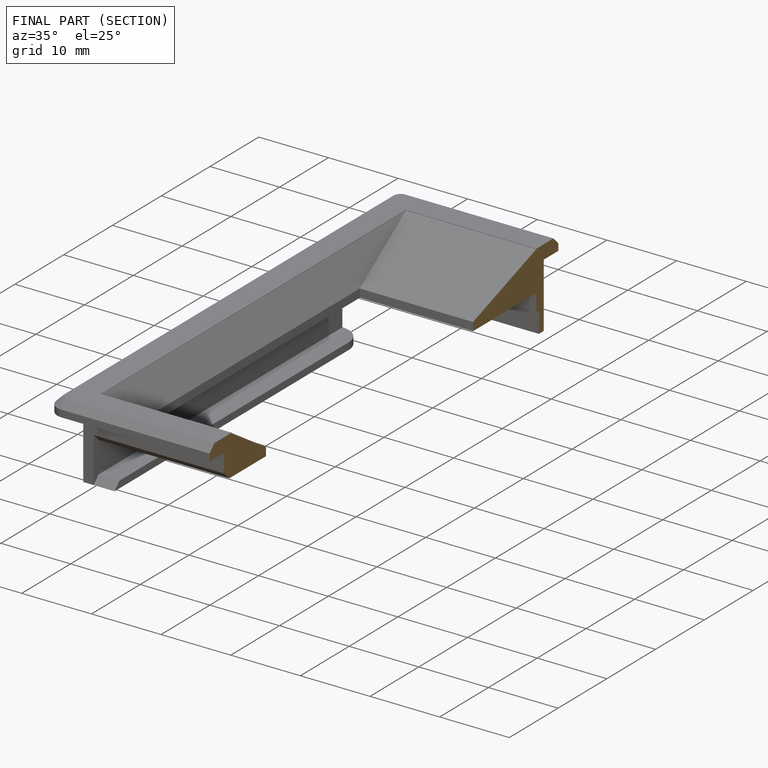
[diagram: finished part — half-section view (interior)]
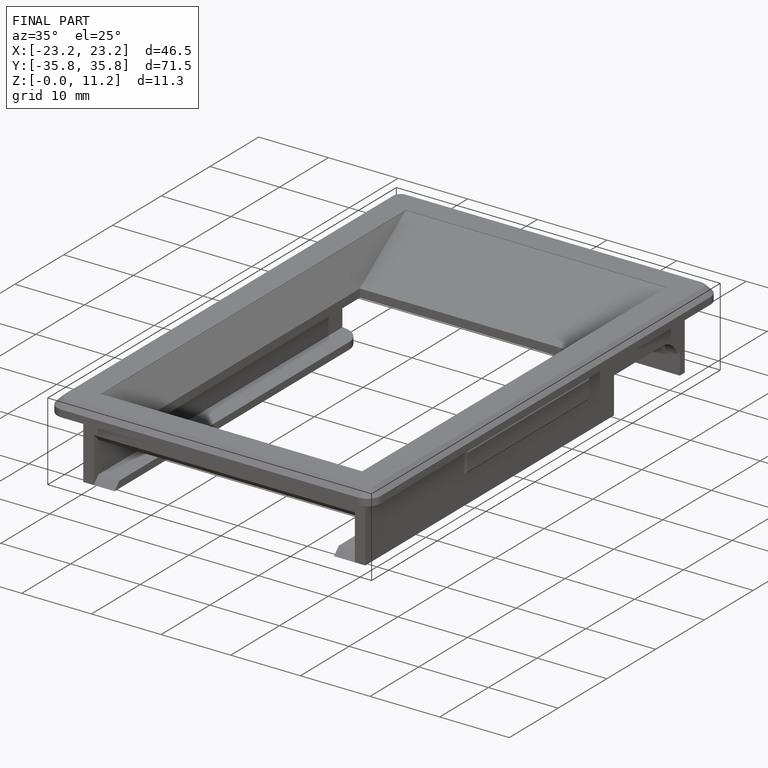
[diagram: finished part — iso view with bounding-box wireframe]
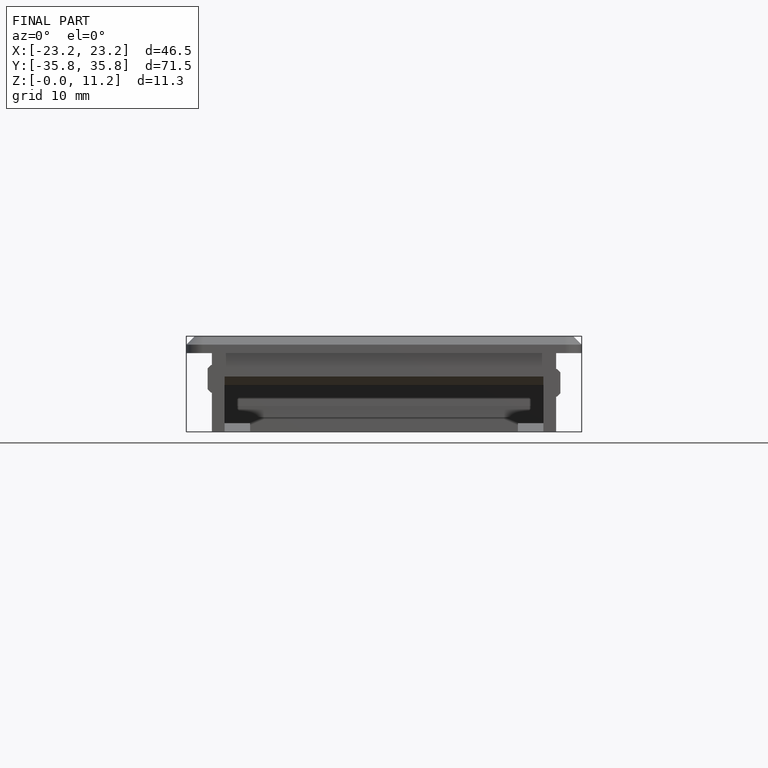
[diagram: finished part — front view with bounding-box wireframe]
